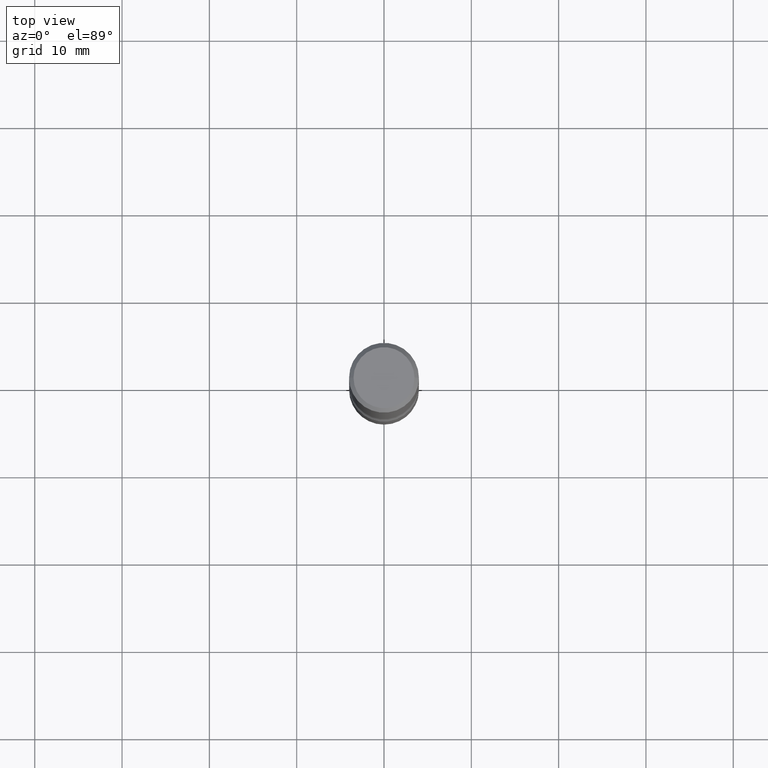
[diagram: clean part render]
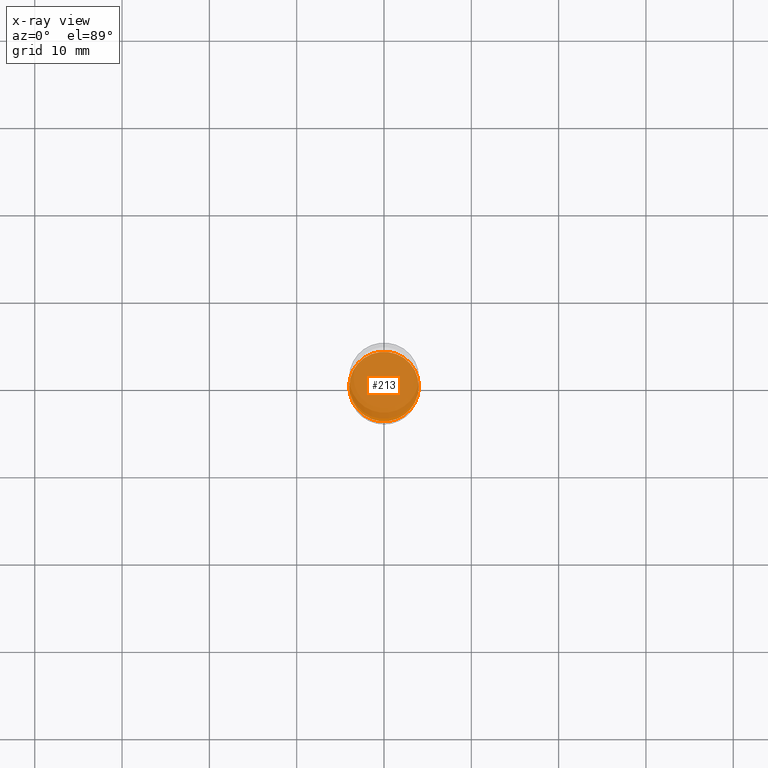
[diagram: x-ray — body ghosted, one internal face saturated and labeled with its STEP entity id]
A machine part, top view, then the same camera in x-ray: the body is ghosted and one INTERNAL B-rep face — a face not visible from any outside direction — is saturated and labeled: STEP entity #213.
In plain terms, the highlighted planar face has unit normal (0, -0, -1).
Its self-contained STEP definition (entity closure, byte-faithful):
#37 = DIRECTION ( 'NONE',  ( 2.438088387897960049E-29, -3.491481338843145188E-15, -1.000000000000000000 ) ) ;
#44 = AXIS2_PLACEMENT_3D ( 'NONE', #344, #37, #347 ) ;
#59 = DIRECTION ( 'NONE',  ( 2.445468806185136597E-29, -3.491481338843145583E-15, -1.000000000000000000 ) ) ;
#96 = DIRECTION ( 'NONE',  ( -1.000000000000000000, 6.982962677686265133E-15, 0.000000000000000000 ) ) ;
#104 = ORIENTED_EDGE ( 'NONE', *, *, #248, .T. ) ;
#164 = VERTEX_POINT ( 'NONE', #475 ) ;
#174 = PLANE ( 'NONE',  #44 ) ;
#213 = ADVANCED_FACE ( 'NONE', ( #299 ), #174, .T. ) ;
#230 = VERTEX_POINT ( 'NONE', #251 ) ;
#233 = DIRECTION ( 'NONE',  ( 2.445468806185136597E-29, -3.491481338843145583E-15, -1.000000000000000000 ) ) ;
#240 = AXIS2_PLACEMENT_3D ( 'NONE', #378, #233, #550 ) ;
#248 = EDGE_CURVE ( 'NONE', #230, #164, #463, .T. ) ;
#251 = CARTESIAN_POINT ( 'NONE',  ( -0.1569999999999995843, -6.992600603895925225E-15, -2.322799999999999976 ) ) ;
#299 = FACE_OUTER_BOUND ( 'NONE', #498, .T. ) ;
#330 = ORIENTED_EDGE ( 'NONE', *, *, #391, .T. ) ;
#344 = CARTESIAN_POINT ( 'NONE',  ( 1.096325140396797721E-15, 0.1569999999999914797, -2.322800000000000864 ) ) ;
#347 = DIRECTION ( 'NONE',  ( -1.000000000000000000, 6.982962677686265922E-15, -4.876176775795935793E-29 ) ) ;
#370 = AXIS2_PLACEMENT_3D ( 'NONE', #530, #59, #96 ) ;
#378 = CARTESIAN_POINT ( 'NONE',  ( 5.680334943006836279E-29, -8.110012853864858834E-15, -2.322799999999999976 ) ) ;
#391 = EDGE_CURVE ( 'NONE', #164, #230, #471, .T. ) ;
#463 = CIRCLE ( 'NONE', #370, 0.1569999999999995843 ) ;
#471 = CIRCLE ( 'NONE', #240, 0.1569999999999995843 ) ;
#475 = CARTESIAN_POINT ( 'NONE',  ( 0.1569999999999995843, -9.206950880155677843E-15, -2.322799999999999976 ) ) ;
#498 = EDGE_LOOP ( 'NONE', ( #330, #104 ) ) ;
#530 = CARTESIAN_POINT ( 'NONE',  ( 5.680334943006836279E-29, -8.110012853864858834E-15, -2.322799999999999976 ) ) ;
#550 = DIRECTION ( 'NONE',  ( -1.000000000000000000, 6.982962677686265133E-15, 0.000000000000000000 ) ) ;